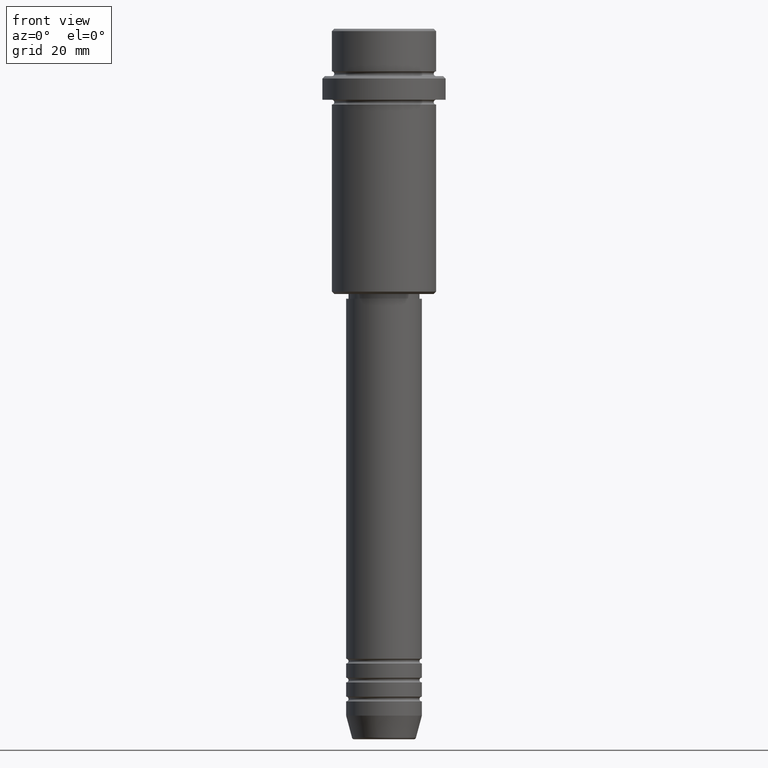
[diagram: clean part render]
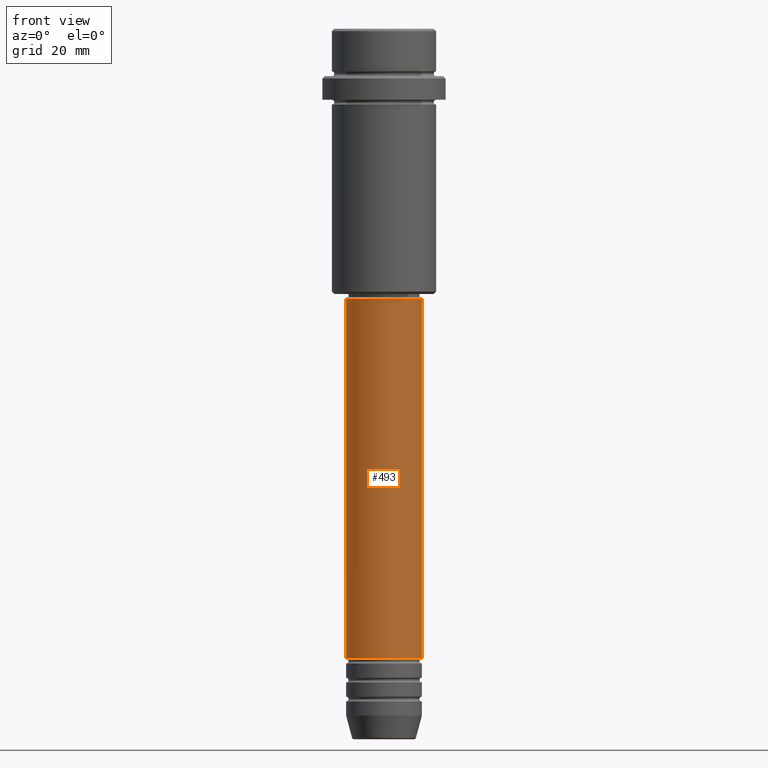
[diagram: same view with one face highlighted and labeled with its STEP entity id]
A machine part, front view. The second image highlights one B-rep face of the part: STEP entity #493.
In plain terms, the highlighted cylindrical surface (partial cylindrical patch) has radius 8 mm, axis along (-0, -0, 1).
Its self-contained STEP definition (entity closure, byte-faithful):
#17 = AXIS2_PLACEMENT_3D ( 'NONE', #163, #613, #1035 ) ;
#69 = CARTESIAN_POINT ( 'NONE',  ( 0.000000000000000000, 0.000000000000000000, -57.00000000000000711 ) ) ;
#163 = CARTESIAN_POINT ( 'NONE',  ( 0.000000000000000000, 0.000000000000000000, -132.9999999999998863 ) ) ;
#225 = CARTESIAN_POINT ( 'NONE',  ( -8.000000000000000000, 9.797174393178825657E-16, 0.000000000000000000 ) ) ;
#303 = VERTEX_POINT ( 'NONE', #926 ) ;
#310 = EDGE_CURVE ( 'NONE', #570, #1031, #1033, .T. ) ;
#339 = CIRCLE ( 'NONE', #1249, 8.000000000000000000 ) ;
#344 = CARTESIAN_POINT ( 'NONE',  ( 0.000000000000000000, 0.000000000000000000, 0.000000000000000000 ) ) ;
#372 = CARTESIAN_POINT ( 'NONE',  ( 8.000000000000000000, 0.000000000000000000, -132.9999999999998863 ) ) ;
#408 = DIRECTION ( 'NONE',  ( -0.000000000000000000, -0.000000000000000000, 1.000000000000000000 ) ) ;
#435 = VECTOR ( 'NONE', #565, 1000.000000000000000 ) ;
#437 = CYLINDRICAL_SURFACE ( 'NONE', #881, 8.000000000000000000 ) ;
#442 = EDGE_CURVE ( 'NONE', #303, #534, #1004, .T. ) ;
#493 = ADVANCED_FACE ( 'NONE', ( #1317 ), #437, .T. ) ;
#534 = VERTEX_POINT ( 'NONE', #598 ) ;
#565 = DIRECTION ( 'NONE',  ( -0.000000000000000000, -0.000000000000000000, 1.000000000000000000 ) ) ;
#570 = VERTEX_POINT ( 'NONE', #372 ) ;
#598 = CARTESIAN_POINT ( 'NONE',  ( -8.000000000000000000, 9.797174393178825657E-16, -57.00000000000000711 ) ) ;
#613 = DIRECTION ( 'NONE',  ( -0.000000000000000000, -0.000000000000000000, 1.000000000000000000 ) ) ;
#621 = EDGE_CURVE ( 'NONE', #534, #1031, #339, .T. ) ;
#649 = CIRCLE ( 'NONE', #17, 8.000000000000000000 ) ;
#753 = EDGE_LOOP ( 'NONE', ( #889, #986, #1009, #1074 ) ) ;
#790 = DIRECTION ( 'NONE',  ( -0.000000000000000000, -0.000000000000000000, 1.000000000000000000 ) ) ;
#841 = EDGE_CURVE ( 'NONE', #303, #570, #649, .T. ) ;
#870 = DIRECTION ( 'NONE',  ( 1.000000000000000000, 0.000000000000000000, 0.000000000000000000 ) ) ;
#881 = AXIS2_PLACEMENT_3D ( 'NONE', #344, #790, #870 ) ;
#889 = ORIENTED_EDGE ( 'NONE', *, *, #442, .F. ) ;
#926 = CARTESIAN_POINT ( 'NONE',  ( -8.000000000000000000, 9.797174393178825657E-16, -132.9999999999998863 ) ) ;
#938 = CARTESIAN_POINT ( 'NONE',  ( 8.000000000000000000, 0.000000000000000000, 0.000000000000000000 ) ) ;
#986 = ORIENTED_EDGE ( 'NONE', *, *, #841, .T. ) ;
#1004 = LINE ( 'NONE', #225, #435 ) ;
#1009 = ORIENTED_EDGE ( 'NONE', *, *, #310, .T. ) ;
#1031 = VERTEX_POINT ( 'NONE', #1408 ) ;
#1033 = LINE ( 'NONE', #938, #1166 ) ;
#1035 = DIRECTION ( 'NONE',  ( 1.000000000000000000, 0.000000000000000000, 0.000000000000000000 ) ) ;
#1061 = DIRECTION ( 'NONE',  ( 1.000000000000000000, 0.000000000000000000, 0.000000000000000000 ) ) ;
#1074 = ORIENTED_EDGE ( 'NONE', *, *, #621, .F. ) ;
#1166 = VECTOR ( 'NONE', #1358, 1000.000000000000000 ) ;
#1249 = AXIS2_PLACEMENT_3D ( 'NONE', #69, #408, #1061 ) ;
#1317 = FACE_OUTER_BOUND ( 'NONE', #753, .T. ) ;
#1358 = DIRECTION ( 'NONE',  ( -0.000000000000000000, -0.000000000000000000, 1.000000000000000000 ) ) ;
#1408 = CARTESIAN_POINT ( 'NONE',  ( 8.000000000000000000, 0.000000000000000000, -57.00000000000000711 ) ) ;